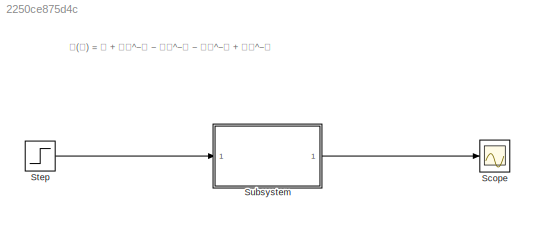
MODEL slx_2250ce875d4c
KIND model
CONFIG AbsTol = auto
CONFIG EnableMultiTasking = off
CONFIG FixedStep = auto
CONFIG MaxStep = auto
CONFIG MinStep = auto
CONFIG RelTol = 1e-3
CONFIG SampleTimeConstraint = Unconstrained
CONFIG SolverName = VariableStepAuto
CONFIG StartTime = 0.0
CONFIG StopTime = 10.0
BLOCK [Scope] Scope
  Floating = off
  NumInputPorts = 1
  Ports = [1]
  ScopeSpecificationString = Simulink.scopes.TimeScopeBlockCfg('CurrentConfiguration', extmgr.ConfigurationSet(extmgr.Configuration('Core','General UI',true),extmgr.Configuration('Core','Source UI',true),extmgr.Configuration('Sources','WiredSimulink',true),extmgr.Configuration('Visuals','Time Domain',true,'SerializedDisplays',{struct('MinYLimReal','-4.875','MaxYLimReal','3.875','YLabelReal','','MinYLimMag','0.00000','MaxYLimM...<+1342ch>
BLOCK [Step] Step
  SampleTime = 0
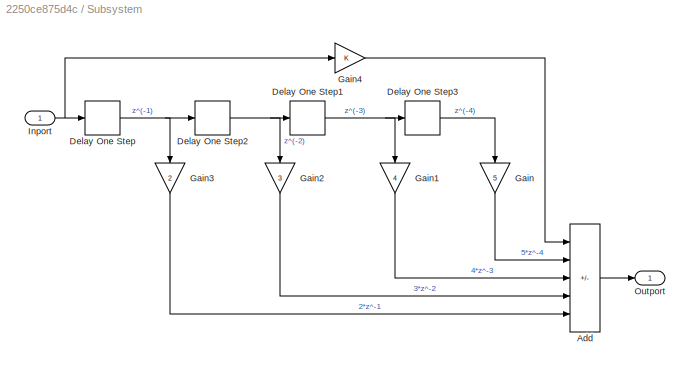
BLOCK [SubSystem] Subsystem
  Ports = [1, 1]
  RequestExecContextInheritance = off
BLOCK [Sum] Subsystem/Add
  IconShape = rectangular
  Inputs = ++--+
  Ports = [5, 1]
BLOCK [Delay] Subsystem/Delay One Step
  DelayLength = 1
  InputPortMap = u0
  Ports = [1, 1]
BLOCK [Delay] Subsystem/Delay One Step1
  DelayLength = 1
  InputPortMap = u0
  Ports = [1, 1]
BLOCK [Delay] Subsystem/Delay One Step2
  DelayLength = 1
  InputPortMap = u0
  Ports = [1, 1]
BLOCK [Delay] Subsystem/Delay One Step3
  DelayLength = 1
  InputPortMap = u0
  Ports = [1, 1]
BLOCK [Gain] Subsystem/Gain
  Gain = 5
  NameLocation = left
BLOCK [Gain] Subsystem/Gain1
  Gain = 4
  NameLocation = left
BLOCK [Gain] Subsystem/Gain2
  Gain = 3
  NameLocation = left
BLOCK [Gain] Subsystem/Gain3
  Gain = 2
  NameLocation = left
BLOCK [Gain] Subsystem/Gain4
BLOCK [Inport] Subsystem/Inport
BLOCK [Outport] Subsystem/Outport
ANNOTATION (root): 𝐇(𝐳) = 𝟏 + 𝟐𝐳^−𝟏 − 𝟑𝐳^−𝟐 − 𝟒𝐳^−𝟑 + 𝟓𝐳^−𝟒
LINE Step:1 -> Subsystem:1
LINE Subsystem/Add:1 -> Subsystem/Outport:1
NET Subsystem/Delay One Step1:1 -> Subsystem/Delay One Step3:1, Subsystem/Gain1:1
NET Subsystem/Delay One Step2:1 -> Subsystem/Delay One Step1:1, Subsystem/Gain2:1
LINE Subsystem/Delay One Step3:1 -> Subsystem/Gain:1
NET Subsystem/Delay One Step:1 -> Subsystem/Delay One Step2:1, Subsystem/Gain3:1
LINE Subsystem/Gain1:1 -> Subsystem/Add:3
LINE Subsystem/Gain2:1 -> Subsystem/Add:4
LINE Subsystem/Gain3:1 -> Subsystem/Add:5
LINE Subsystem/Gain4:1 -> Subsystem/Add:1
LINE Subsystem/Gain:1 -> Subsystem/Add:2
NET Subsystem/Inport:1 -> Subsystem/Delay One Step:1, Subsystem/Gain4:1
LINE Subsystem:1 -> Scope:1
note: NET lines group one-source signal fan-out (src -> all destinations, sorted); 1:1 wires keep LINE
